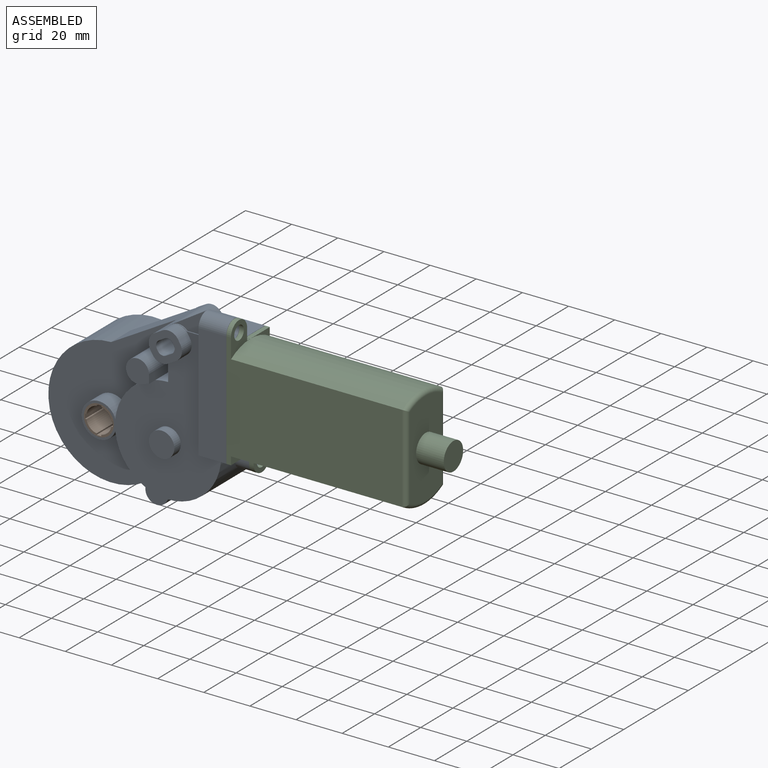
[diagram: assembled view]
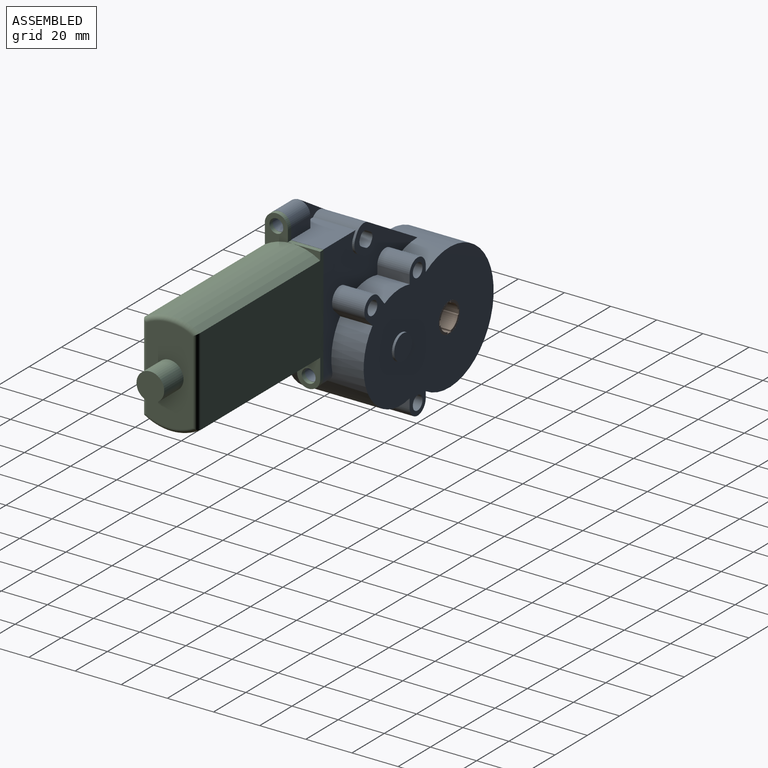
[diagram: assembled view, second angle]
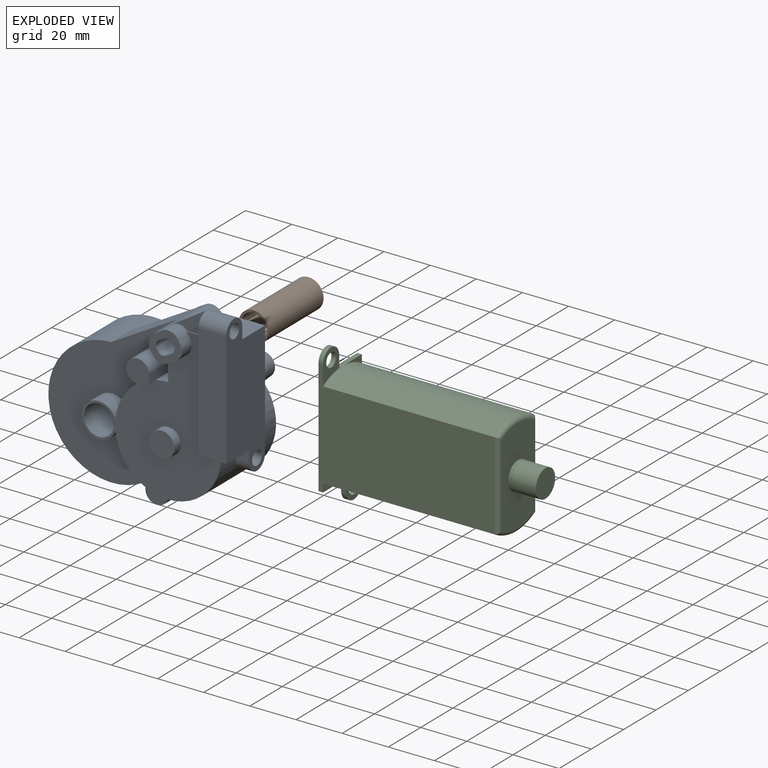
[diagram: exploded view]
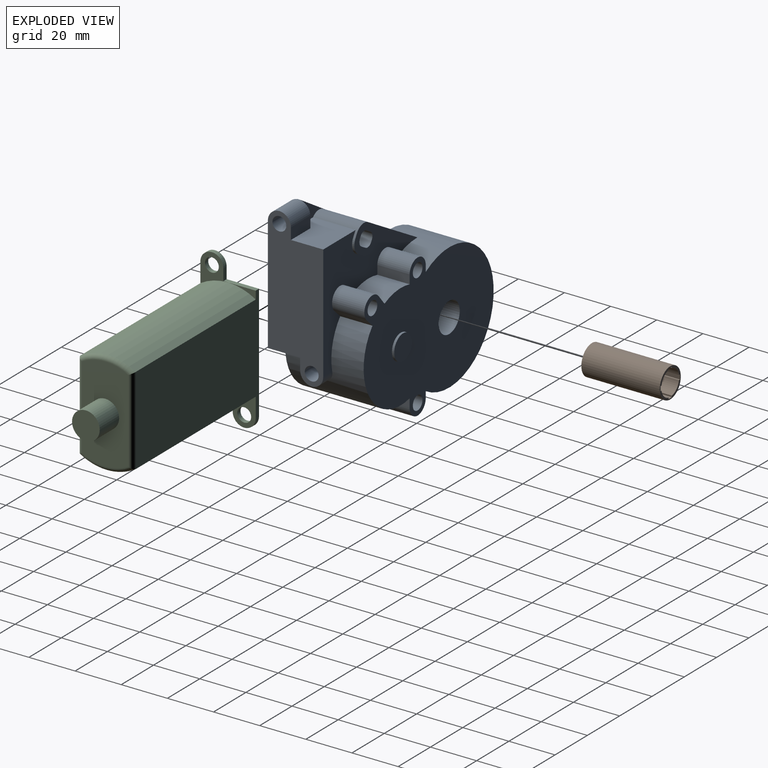
[diagram: exploded view, second angle]
ASSEMBLY  parts=3 mates=2
PART A: 84 faces, bbox 85.5x41x86 mm
  f0: plane 7.92x0.5mm, normal (0,0,1), area 4mm2, adj f6,f9,f28,f69
  f1: plane 8.14x8mm, normal (-1,0,0), area 65.1mm2, adj f2,f11,f26,f28
  f2: cylinder r=5.08mm len=8mm, axis (0,-1,0), area 24.3mm2, adj f1,f26,f28,f77
  f3: plane 49.92x12mm, normal (0,-1,0), area 599mm2, adj f9,f32,f33,f39
  f4: plane 20.06x18.5mm, normal (0,0,1), area 317.1mm2, adj f5,f7,f33,f37,f38,f70
  f5: plane 58.31x49.92mm, normal (0,1,0), area 929.8mm2, adj f4,f8,f14,f15,f16,f17,f18,f19
  f6: plane 16x10mm, normal (0,-1,0), area 70.9mm2, adj f0,f9,f36,f41,f43,f69,f78
  f7: plane 16x10mm, normal (0,1,0), area 71.3mm2, adj f4,f36,f37,f42,f43,f70
  f8: cylinder r=23mm len=45.88mm, axis (0,-1,0), area 1777.5mm2, adj f5,f14,f24,f25,f26,f27,f28,f32
  f9: plane 54.97x4.5mm, normal (-1,0,0), area 219.5mm2, adj f0,f3,f6,f28,f32,f39
  f10: plane 12x3.17mm, normal (1,0,0), area 38mm2, adj f11,f12,f26,f34,f35
  f11: cylinder r=23mm len=8mm, axis (0,-1,0), area 44.3mm2, adj f1,f10,f26,f28
  f12: cylinder r=5mm len=12mm, axis (0,-1,0), area 311.3mm2, adj f10,f13,f26,f34,f35
  f13: cylinder r=23mm len=18.98mm, axis (0,-1,0), area 199.7mm2, adj f12,f26,f27,f28
  f14: plane 14x3.47mm, normal (0.69,0,-0.72), area 67.1mm2, adj f5,f8,f15,f25
  f15: cylinder r=5mm len=14mm, axis (0,-1,0), area 228.1mm2, adj f5,f14,f16,f25
  f16: plane 14x4.35mm, normal (-0.77,0,0.64), area 79mm2, adj f5,f15,f17,f25
  f17: cylinder r=23mm len=15.57mm, axis (0,-1,0), area 223.7mm2, adj f5,f16,f18,f25
  f18: plane 14x3.17mm, normal (1,0,0), area 44.4mm2, adj f5,f17,f19,f25
  f19: cylinder r=5mm len=14mm, axis (0,-1,0), area 226.4mm2, adj f5,f18,f20,f25
  f20: plane 14x2.63mm, normal (-1,0,0), area 36.8mm2, adj f5,f19,f21,f25
  f21: cylinder r=27.5mm len=55mm, axis (0,-1,0), area 2855.2mm2, adj f5,f20,f22,f25,f26,f36
  f22: plane 26x2.63mm, normal (-1,0,0), area 68.3mm2, adj f21,f23,f25,f26
  f23: cylinder r=5mm len=26mm, axis (0,-1,0), area 408.4mm2, adj f22,f24,f25,f26
  f24: plane 26x3.63mm, normal (1,0,0), area 94.4mm2, adj f8,f23,f25,f26
  f25: plane 80.5x61.94mm, normal (0,1,0), area 3403.2mm2, adj f8,f14,f15,f16,f17,f18,f19,f20
  f26: plane 75.97x57.5mm, normal (0,-1,0), area 1958.7mm2, adj f1,f2,f8,f10,f11,f12,f13,f21
  f27: cylinder r=7.5mm len=15mm, axis (0,1,0), area 338.7mm2, adj f8,f13,f26,f28
  f28: plane 69.69x60.5mm, normal (0,-1,0), area 1813.3mm2, adj f0,f1,f2,f8,f9,f11,f13,f27
  f29: cylinder r=6.5mm len=34mm, axis (0,-1,0), area 1388.6mm2, adj f25,f28
  f30: cylinder r=5.5mm len=11mm, axis (0,1,0), area 138.2mm2, adj f28,f31
  f31: plane 11x11mm, normal (0,-1,0), area 95mm2, adj f30
  f32: plane 14x12mm, normal (0,0,-1), area 98mm2, adj f3,f8,f9,f28,f33,f54
  f33: plane 65x24mm, normal (1,0,0), area 1201.3mm2, adj f3,f4,f5,f32,f38,f39,f40,f44
  f34: cylinder r=23mm len=4mm, axis (0,1,0), area 13.1mm2, adj f10,f12,f28,f35
  f35: plane 10x10mm, normal (0,-1,0), area 80.8mm2, adj f10,f12,f34
  f36: plane 31.97x27mm, normal (-0.5,0,0.87), area 498.7mm2, adj f5,f6,f7,f21,f26,f43,f67,f68
  f37: plane 9.97x4.5mm, normal (-1,0,0), area 39.5mm2, adj f4,f7,f38,f40
  f38: plane 12x4.92mm, normal (0,1,0), area 59mm2, adj f4,f33,f37,f40
  f39: cylinder r=5.08mm len=12mm, axis (1,0,0), area 94.8mm2, adj f3,f9,f33,f40,f41
  f40: cylinder r=5.08mm len=12mm, axis (1,0,0), area 94.8mm2, adj f33,f37,f38,f39,f42
  f41: plane 0.5x0.03mm, normal (1,0,0), area 0mm2, adj f6,f39,f43
  f42: plane 0.5x0.03mm, normal (1,0,0), area 0mm2, adj f7,f40,f43
  f43: plane 16x10mm, normal (-0.53,0,0.85), area 18.9mm2, adj f6,f7,f36,f41,f42
  f44: cylinder r=3mm len=9mm, axis (1,0,0), area 169.6mm2, adj f33,f45
  f45: cone r=0mm half-angle=59deg, axis (1,0,0), area 33mm2, adj f44
  f46: cylinder r=3mm len=20mm, axis (0,1,0), area 377mm2, adj f25,f47
  f47: cone r=0mm half-angle=59deg, axis (0,1,0), area 33mm2, adj f46
  f48: cylinder r=3mm len=20mm, axis (0,1,0), area 377mm2, adj f25,f49
  f49: cone r=0mm half-angle=59deg, axis (0,1,0), area 33mm2, adj f48
  f50: cylinder r=3mm len=20mm, axis (0,1,0), area 377mm2, adj f25,f51
  f51: cone r=0mm half-angle=59deg, axis (0,1,0), area 33mm2, adj f50
  f52: plane 11x11mm, normal (0,1,0), area 95mm2, adj f53
  f53: cylinder r=5.5mm len=11mm, axis (0,-1,0), area 34.6mm2, adj f25,f52
  f54: plane 5.53x4.92mm, normal (0,-1,0), area 25.5mm2, adj f8,f32,f33,f55
  f55: cylinder r=5.08mm len=7.29mm, axis (1,0,0), area 51.7mm2, adj f8,f33,f54,f56
  f56: cylinder r=5.08mm len=7.29mm, axis (-1,0,0), area 51.7mm2, adj f5,f8,f33,f55
  f57: cylinder r=3mm len=12mm, axis (1,0,0), area 226.2mm2, adj f33,f58
  f58: cone r=0mm half-angle=59deg, axis (1,0,0), area 33mm2, adj f57
  f59: plane 27x2.53mm, normal (-0.5,0,0.87), area 78.8mm2, adj f67,f79,f81,f83
  f60: plane 27x0.8mm, normal (0.87,0,0.5), area 24.8mm2, adj f67,f79,f82,f83
  f61: plane 27x2.53mm, normal (0.5,0,-0.87), area 78.8mm2, adj f67,f80,f82,f83
  f62: plane 1.59x1mm, normal (-0.87,0,-0.5), area 1.8mm2, adj f5,f67,f72,f73
  f63: plane 3.33x1.92mm, normal (0.5,0,-0.87), area 3.8mm2, adj f5,f67,f71,f73
  f64: plane 27x0.8mm, normal (-0.87,0,-0.5), area 24.8mm2, adj f67,f80,f81,f83
  f65: plane 1.59x1mm, normal (0.87,0,0.5), area 1.8mm2, adj f5,f67,f70,f71
  f66: plane 14x1.59mm, normal (-0.87,0,-0.5), area 25.8mm2, adj f26,f68,f77,f83
  f67: plane 14.41x13.67mm, normal (0,1,0), area 103.4mm2, adj f36,f59,f60,f61,f62,f63,f64,f65
  f68: cylinder r=5.08mm len=14mm, axis (0,1,0), area 111.7mm2, adj f26,f36,f66,f83
  f69: cylinder r=5.08mm len=6.37mm, axis (0,1,0), area 3.5mm2, adj f0,f6,f28,f78
  f70: cylinder r=5.08mm len=19.5mm, axis (0,-1,0), area 134.9mm2, adj f4,f5,f7,f36,f65,f67
  f71: cylinder r=5.08mm len=6.94mm, axis (0,1,0), area 8mm2, adj f5,f63,f65,f67
  f72: cylinder r=5.08mm len=6.94mm, axis (0,1,0), area 8mm2, adj f5,f36,f62,f67
  f73: cylinder r=5.08mm len=6.94mm, axis (0,-1,0), area 8mm2, adj f5,f62,f63,f67
  f74: plane 6x3.33mm, normal (0.5,0,-0.87), area 23mm2, adj f28,f76,f77,f83
  f75: plane 6x1.59mm, normal (0.87,0,0.5), area 11mm2, adj f28,f76,f78,f83
  f76: cylinder r=5.08mm len=6.94mm, axis (0,-1,0), area 47.9mm2, adj f28,f74,f75,f83
  f77: cylinder r=5.08mm len=14mm, axis (0,-1,0), area 65.3mm2, adj f2,f26,f28,f66,f74,f83
  f78: cylinder r=5.08mm len=6.94mm, axis (0,-1,0), area 47.9mm2, adj f6,f28,f36,f69,f75,f83
  f79: cylinder r=2.54mm len=27mm, axis (0,1,0), area 107.7mm2, adj f59,f60,f67,f83
  f80: cylinder r=2.54mm len=27mm, axis (0,1,0), area 107.7mm2, adj f61,f64,f67,f83
  f81: cylinder r=2.54mm len=27mm, axis (0,1,0), area 107.7mm2, adj f59,f64,f67,f83
  f82: cylinder r=2.54mm len=27mm, axis (0,-1,0), area 107.7mm2, adj f60,f61,f67,f83
  f83: plane 14.41x13.67mm, normal (0,-1,0), area 103.4mm2, adj f36,f59,f60,f61,f64,f66,f68,f74
PART B: 19 faces, bbox 13x34x13 mm
  f0: cylinder r=5.5mm len=34mm, axis (0,-1,0), area 225.4mm2, adj f1,f15,f17,f18
  f1: plane 34x0.59mm, normal (1,0,0), area 20.1mm2, adj f0,f2,f17,f18
  f2: plane 34x2mm, normal (0,0,-1), area 68mm2, adj f1,f3,f17,f18
  f3: plane 34x0.59mm, normal (-1,0,0), area 20.1mm2, adj f2,f4,f17,f18
  f4: cylinder r=5.5mm len=34mm, axis (0,-1,0), area 225.4mm2, adj f3,f5,f17,f18
  f5: plane 34x0.59mm, normal (0,0,-1), area 20.1mm2, adj f4,f6,f17,f18
  f6: plane 34x2mm, normal (-1,0,0), area 68mm2, adj f5,f7,f17,f18
  f7: plane 34x0.59mm, normal (0,0,1), area 20.1mm2, adj f6,f8,f17,f18
  f8: cylinder r=5.5mm len=34mm, axis (0,-1,0), area 225.4mm2, adj f7,f9,f17,f18
  f9: plane 34x0.59mm, normal (-1,0,0), area 20.1mm2, adj f8,f10,f17,f18
  f10: plane 34x2mm, normal (0,0,1), area 68mm2, adj f9,f11,f17,f18
  f11: plane 34x0.59mm, normal (1,0,0), area 20.1mm2, adj f10,f12,f17,f18
  f12: cylinder r=5.5mm len=34mm, axis (0,-1,0), area 225.4mm2, adj f11,f13,f17,f18
  f13: plane 34x0.59mm, normal (0,0,1), area 20.1mm2, adj f12,f14,f17,f18
  f14: plane 34x2mm, normal (1,0,0), area 68mm2, adj f13,f15,f17,f18
  f15: plane 34x0.59mm, normal (0,0,-1), area 20.1mm2, adj f0,f14,f17,f18
  f16: cylinder r=6.5mm len=34mm, axis (0,-1,0), area 1388.6mm2, adj f17,f18
  f17: plane 13x13mm, normal (0,1,0), area 33.5mm2, adj f0,f1,f2,f3,f4,f5,f6,f7
  f18: plane 13x13mm, normal (0,-1,0), area 33.5mm2, adj f0,f1,f2,f3,f4,f5,f6,f7
PART C: 26 faces, bbox 90x26x65 mm
  f0: plane 12x3.47mm, normal (1,0,0), area 13.4mm2, adj f5,f6,f17
  f1: plane 13.47x12.01mm, normal (1,0,0), area 74.4mm2, adj f6,f7,f8,f9,f10,f14,f17
  f2: plane 13.47x12.01mm, normal (1,0,0), area 74.4mm2, adj f3,f4,f5,f11,f12,f13,f18
  f3: cylinder r=5mm len=10mm, axis (-1,0,0), area 31.4mm2, adj f2,f4,f12,f16
  f4: plane 5x2mm, normal (0,-1,0), area 10mm2, adj f2,f3,f5,f16
  f5: plane 76.1x45mm, normal (0,-1,0), area 2910.5mm2, adj f0,f2,f4,f6,f16,f17,f18,f23
  f6: plane 14x2mm, normal (0,0,-1), area 28mm2, adj f0,f1,f5,f7,f16
  f7: plane 5x2mm, normal (0,-1,0), area 10mm2, adj f1,f6,f8,f16
  f8: cylinder r=5mm len=10mm, axis (-1,0,0), area 31.4mm2, adj f1,f7,f9,f16
  f9: plane 5x2mm, normal (0,1,0), area 10mm2, adj f1,f8,f10,f16
  f10: plane 76.1x45mm, normal (0,1,0), area 2910.5mm2, adj f1,f9,f11,f15,f16,f17,f18,f24
  f11: plane 14x2mm, normal (0,0,1), area 28mm2, adj f2,f10,f12,f15,f16
  f12: plane 5x2mm, normal (0,1,0), area 10mm2, adj f2,f3,f11,f16
  f13: cylinder r=3mm len=6mm, axis (-1,0,0), area 37.7mm2, adj f2,f16
  f14: cylinder r=3mm len=6mm, axis (-1,0,0), area 37.7mm2, adj f1,f16
  f15: plane 12x3.47mm, normal (1,0,0), area 13.4mm2, adj f10,f11,f18
  f16: plane 65.01x24.01mm, normal (-1,0,0), area 1202.1mm2, adj f3,f4,f5,f6,f7,f8,f9,f10
  f17: cylinder r=22.5mm len=74.1mm, axis (-1,0,0), area 1875.7mm2, adj f0,f1,f5,f10,f25
  f18: cylinder r=22.5mm len=74.1mm, axis (-1,0,0), area 1875.7mm2, adj f2,f5,f10,f15,f22
  f19: plane 41.19x20.19mm, normal (1,0,0), area 683.9mm2, adj f20,f22,f23,f24,f25
  f20: cylinder r=6mm len=12mm, axis (-1,0,0), area 452.4mm2, adj f19,f21
  f21: plane 12x12mm, normal (1,0,0), area 113.1mm2, adj f20
  f22: torus R=20.59mm, axis (1,0,0), area 71.2mm2, adj f18,f19,f23,f24
  f23: cylinder r=1.91mm len=38.07mm, axis (0,0,-1), area 111.6mm2, adj f5,f19,f22,f25
  f24: cylinder r=1.91mm len=38.07mm, axis (0,0,1), area 111.6mm2, adj f10,f19,f22,f25
  f25: torus R=20.59mm, axis (1,0,0), area 71.2mm2, adj f17,f19,f23,f24
PLACE A t=(-47.41,14.23,74.38)mm
PLACE B t=(-46.73,18.23,28.78)mm
PLACE C t=(-47.41,14.32,74.29)mm
MATE fastened C.f3 <-> A.f39  axis (-1,0,0) through (-121.84,7.31,118.31)mm
MATE revolute B.f0 <-> A.f21  axis (0,-1,0) through (-179.84,6.23,68.39)mm
